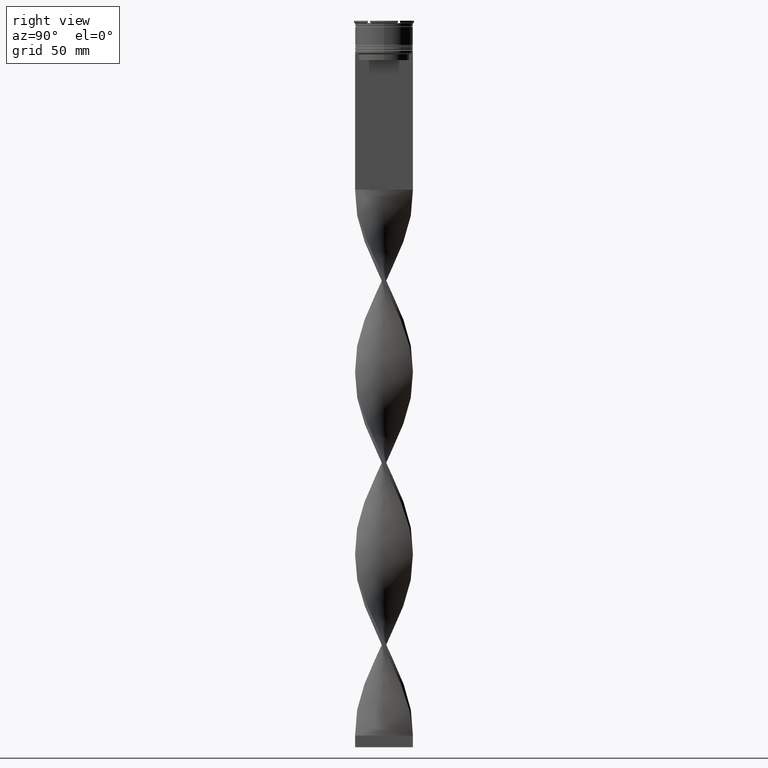
[diagram: clean part render]
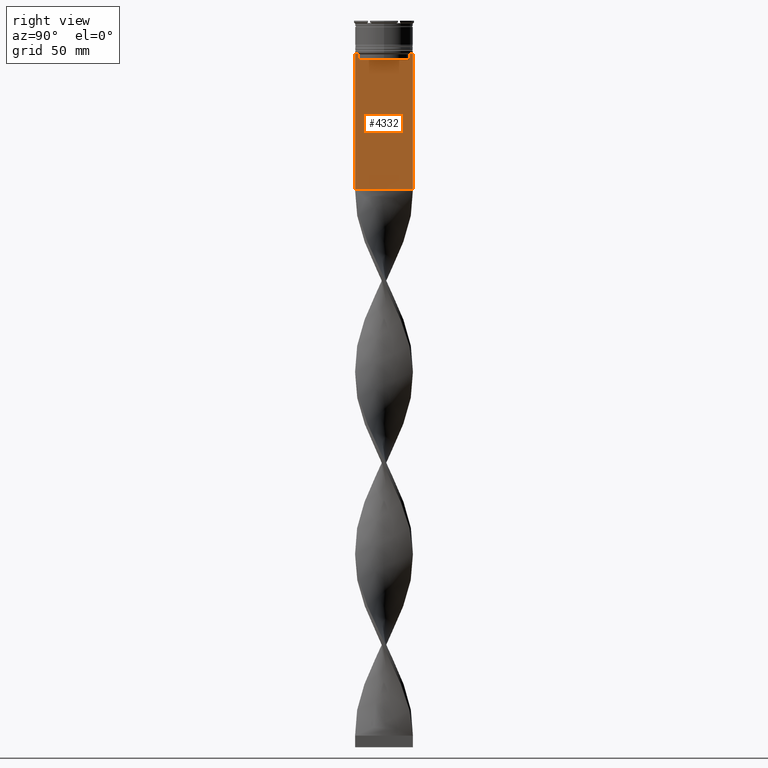
[diagram: same view with one face highlighted and labeled with its STEP entity id]
A machine part, right view. The second image highlights one B-rep face of the part: STEP entity #4332.
In plain terms, the highlighted planar face has unit normal (-1, 0, 0).
Its self-contained STEP definition (entity closure, byte-faithful):
#6 = DIRECTION ( 'NONE',  ( 0.000000000000000000, 0.000000000000000000, 1.000000000000000000 ) ) ;
#19 = CARTESIAN_POINT ( 'NONE',  ( 0.7500000000000002220, 11.04122051153452055, -14.33334204648729404 ) ) ;
#42 = EDGE_CURVE ( 'NONE', #2498, #4094, #3174, .T. ) ;
#244 = EDGE_CURVE ( 'NONE', #2978, #2498, #1424, .T. ) ;
#266 = LINE ( 'NONE', #3342, #2274 ) ;
#290 = CARTESIAN_POINT ( 'NONE',  ( 0.7500000000000002220, -12.50000000000000000, -14.00000000000000178 ) ) ;
#308 = LINE ( 'NONE', #4152, #3180 ) ;
#344 = VERTEX_POINT ( 'NONE', #693 ) ;
#355 = ORIENTED_EDGE ( 'NONE', *, *, #42, .T. ) ;
#361 = CARTESIAN_POINT ( 'NONE',  ( 0.7500000000000002220, 11.37530219378809093, -14.00000000000000178 ) ) ;
#383 = CARTESIAN_POINT ( 'NONE',  ( 0.7500000000000002220, -12.50000000000000000, -14.00000000000000178 ) ) ;
#393 = LINE ( 'NONE', #3850, #4289 ) ;
#398 = DIRECTION ( 'NONE',  ( 0.000000000000000000, 1.000000000000000000, 0.000000000000000000 ) ) ;
#416 = VECTOR ( 'NONE', #3486, 1000.000000000000000 ) ;
#600 = CARTESIAN_POINT ( 'NONE',  ( 0.7500000000000002220, -10.87416663473574197, 0.000000000000000000 ) ) ;
#609 = DIRECTION ( 'NONE',  ( 0.000000000000000000, 0.000000000000000000, -1.000000000000000000 ) ) ;
#677 = VERTEX_POINT ( 'NONE', #3524 ) ;
#693 = CARTESIAN_POINT ( 'NONE',  ( 0.7500000000000002220, -12.37729776647553059, -14.00000000000000178 ) ) ;
#741 = CARTESIAN_POINT ( 'NONE',  ( 0.7500000000000002220, -12.50000000000000000, 11.04495957273638673 ) ) ;
#760 = ORIENTED_EDGE ( 'NONE', *, *, #244, .T. ) ;
#953 = ORIENTED_EDGE ( 'NONE', *, *, #2048, .T. ) ;
#989 = CARTESIAN_POINT ( 'NONE',  ( 0.7500000000000002220, 12.50000000000000000, 11.04495957273638673 ) ) ;
#1022 = CARTESIAN_POINT ( 'NONE',  ( 0.7500000000000002220, 12.37729776647553059, -14.00000000000000178 ) ) ;
#1043 = CARTESIAN_POINT ( 'NONE',  ( 0.7500000000000002220, 11.37530219378809093, -14.00000000000000178 ) ) ;
#1078 = DIRECTION ( 'NONE',  ( -1.000000000000000000, 0.000000000000000000, 0.000000000000000000 ) ) ;
#1085 = DIRECTION ( 'NONE',  ( 0.000000000000000000, -1.000000000000000000, 0.000000000000000000 ) ) ;
#1104 = DIRECTION ( 'NONE',  ( 0.000000000000000000, -1.000000000000000000, 0.000000000000000000 ) ) ;
#1129 = EDGE_CURVE ( 'NONE', #2569, #344, #266, .T. ) ;
#1261 = LINE ( 'NONE', #600, #1820 ) ;
#1282 = CARTESIAN_POINT ( 'NONE',  ( 0.7500000000000002220, -12.50000000000000000, 11.04495957273638673 ) ) ;
#1307 = EDGE_CURVE ( 'NONE', #1784, #2569, #2372, .T. ) ;
#1315 = LINE ( 'NONE', #989, #4415 ) ;
#1319 = VECTOR ( 'NONE', #398, 1000.000000000000000 ) ;
#1328 = EDGE_CURVE ( 'NONE', #677, #1757, #393, .T. ) ;
#1393 = ORIENTED_EDGE ( 'NONE', *, *, #1608, .T. ) ;
#1424 = LINE ( 'NONE', #383, #2549 ) ;
#1473 = VERTEX_POINT ( 'NONE', #3018 ) ;
#1491 = EDGE_CURVE ( 'NONE', #1757, #1784, #1261, .T. ) ;
#1608 = EDGE_CURVE ( 'NONE', #3577, #1473, #4013, .T. ) ;
#1622 = DIRECTION ( 'NONE',  ( -0.000000000000000000, -0.000000000000000000, 1.000000000000000000 ) ) ;
#1757 = VERTEX_POINT ( 'NONE', #3734 ) ;
#1759 = CARTESIAN_POINT ( 'NONE',  ( 0.7500000000000002220, 11.20826531587977648, -14.16667499681701514 ) ) ;
#1784 = VERTEX_POINT ( 'NONE', #3956 ) ;
#1820 = VECTOR ( 'NONE', #1622, 1000.000000000000000 ) ;
#1832 = CARTESIAN_POINT ( 'NONE',  ( 0.7500000000000002220, -11.20826532207830439, -14.16667499063191826 ) ) ;
#1909 = DIRECTION ( 'NONE',  ( 0.000000000000000000, 0.000000000000000000, -1.000000000000000000 ) ) ;
#1981 = DIRECTION ( 'NONE',  ( 0.000000000000000000, -1.000000000000000000, 0.000000000000000000 ) ) ;
#2007 = CARTESIAN_POINT ( 'NONE',  ( 0.7500000000000002220, 10.87416663473574197, -14.50000000000000000 ) ) ;
#2048 = EDGE_CURVE ( 'NONE', #1473, #3450, #2159, .T. ) ;
#2159 = LINE ( 'NONE', #3509, #1319 ) ;
#2251 = ORIENTED_EDGE ( 'NONE', *, *, #1129, .T. ) ;
#2274 = VECTOR ( 'NONE', #1981, 1000.000000000000000 ) ;
#2372 = B_SPLINE_CURVE_WITH_KNOTS ( 'NONE', 3,
 ( #2542, #3918, #1832, #2854 ),
 .UNSPECIFIED., .F., .F.,
 ( 4, 4 ),
 ( 0.05009718908159448147, 0.05081156920313959630 ),
 .UNSPECIFIED. ) ;
#2388 = FACE_OUTER_BOUND ( 'NONE', #2457, .T. ) ;
#2408 = VECTOR ( 'NONE', #2657, 1000.000000000000000 ) ;
#2413 = ORIENTED_EDGE ( 'NONE', *, *, #1491, .T. ) ;
#2457 = EDGE_LOOP ( 'NONE', ( #760, #355, #3750, #2487, #2413, #2666, #2251, #4310, #1393, #953, #3075, #3727 ) ) ;
#2487 = ORIENTED_EDGE ( 'NONE', *, *, #1328, .T. ) ;
#2498 = VERTEX_POINT ( 'NONE', #1043 ) ;
#2532 = VECTOR ( 'NONE', #1909, 1000.000000000000000 ) ;
#2542 = CARTESIAN_POINT ( 'NONE',  ( 0.7500000000000002220, -10.87416663473574197, -14.50000000000000000 ) ) ;
#2549 = VECTOR ( 'NONE', #1085, 1000.000000000000000 ) ;
#2569 = VERTEX_POINT ( 'NONE', #2917 ) ;
#2657 = DIRECTION ( 'NONE',  ( 0.000000000000000000, 0.000000000000000000, -1.000000000000000000 ) ) ;
#2666 = ORIENTED_EDGE ( 'NONE', *, *, #1307, .T. ) ;
#2838 = LINE ( 'NONE', #3423, #416 ) ;
#2854 = CARTESIAN_POINT ( 'NONE',  ( 0.7500000000000002220, -11.37530219378809093, -14.00000000000000178 ) ) ;
#2914 = CARTESIAN_POINT ( 'NONE',  ( 0.7500000000000002220, 12.50000000000000000, -73.00000000000001421 ) ) ;
#2917 = CARTESIAN_POINT ( 'NONE',  ( 0.7500000000000002220, -11.37530219378809093, -14.00000000000000178 ) ) ;
#2978 = VERTEX_POINT ( 'NONE', #1022 ) ;
#3018 = CARTESIAN_POINT ( 'NONE',  ( 0.7500000000000002220, -12.50000000000000000, -73.00000000000001421 ) ) ;
#3075 = ORIENTED_EDGE ( 'NONE', *, *, #4299, .F. ) ;
#3174 = B_SPLINE_CURVE_WITH_KNOTS ( 'NONE', 3,
 ( #361, #1759, #19, #2007 ),
 .UNSPECIFIED., .F., .F.,
 ( 4, 4 ),
 ( 0.01936090553552769281, 0.02006881572333104116 ),
 .UNSPECIFIED. ) ;
#3180 = VECTOR ( 'NONE', #1104, 1000.000000000000000 ) ;
#3293 = CARTESIAN_POINT ( 'NONE',  ( 0.7500000000000002220, 10.87416663473574197, 0.000000000000000000 ) ) ;
#3342 = CARTESIAN_POINT ( 'NONE',  ( 0.7500000000000002220, -12.50000000000000000, -14.00000000000000178 ) ) ;
#3423 = CARTESIAN_POINT ( 'NONE',  ( 0.7500000000000002220, -12.50000000000000000, -14.00000000000000178 ) ) ;
#3450 = VERTEX_POINT ( 'NONE', #2914 ) ;
#3486 = DIRECTION ( 'NONE',  ( 0.000000000000000000, -1.000000000000000000, 0.000000000000000000 ) ) ;
#3509 = CARTESIAN_POINT ( 'NONE',  ( 0.7500000000000002220, -12.50000000000000000, -73.00000000000001421 ) ) ;
#3524 = CARTESIAN_POINT ( 'NONE',  ( 0.7500000000000002220, 10.87416663473574019, -17.00000000000000000 ) ) ;
#3577 = VERTEX_POINT ( 'NONE', #290 ) ;
#3727 = ORIENTED_EDGE ( 'NONE', *, *, #4413, .T. ) ;
#3734 = CARTESIAN_POINT ( 'NONE',  ( 0.7500000000000002220, -10.87416663473574019, -17.00000000000000000 ) ) ;
#3750 = ORIENTED_EDGE ( 'NONE', *, *, #4049, .T. ) ;
#3783 = VERTEX_POINT ( 'NONE', #4155 ) ;
#3850 = CARTESIAN_POINT ( 'NONE',  ( 0.7500000000000002220, 10.90000000000000213, -17.00000000000000000 ) ) ;
#3918 = CARTESIAN_POINT ( 'NONE',  ( 0.7500000000000002220, -11.04122051801870441, -14.33334204001847567 ) ) ;
#3942 = DIRECTION ( 'NONE',  ( 0.000000000000000000, -1.000000000000000000, 0.000000000000000000 ) ) ;
#3956 = CARTESIAN_POINT ( 'NONE',  ( 0.7500000000000002220, -10.87416663473574197, -14.50000000000000000 ) ) ;
#4013 = LINE ( 'NONE', #1282, #2408 ) ;
#4049 = EDGE_CURVE ( 'NONE', #4094, #677, #4246, .T. ) ;
#4094 = VERTEX_POINT ( 'NONE', #4313 ) ;
#4152 = CARTESIAN_POINT ( 'NONE',  ( 0.7500000000000002220, -12.50000000000000000, -14.00000000000000178 ) ) ;
#4155 = CARTESIAN_POINT ( 'NONE',  ( 0.7500000000000002220, 12.50000000000000000, -14.00000000000000178 ) ) ;
#4246 = LINE ( 'NONE', #3293, #2532 ) ;
#4289 = VECTOR ( 'NONE', #3942, 1000.000000000000000 ) ;
#4299 = EDGE_CURVE ( 'NONE', #3783, #3450, #1315, .T. ) ;
#4310 = ORIENTED_EDGE ( 'NONE', *, *, #4382, .T. ) ;
#4313 = CARTESIAN_POINT ( 'NONE',  ( 0.7500000000000002220, 10.87416663473574197, -14.50000000000000000 ) ) ;
#4332 = ADVANCED_FACE ( 'NONE', ( #2388 ), #4488, .F. ) ;
#4339 = AXIS2_PLACEMENT_3D ( 'NONE', #741, #1078, #6 ) ;
#4382 = EDGE_CURVE ( 'NONE', #344, #3577, #2838, .T. ) ;
#4413 = EDGE_CURVE ( 'NONE', #3783, #2978, #308, .T. ) ;
#4415 = VECTOR ( 'NONE', #609, 1000.000000000000000 ) ;
#4488 = PLANE ( 'NONE',  #4339 ) ;